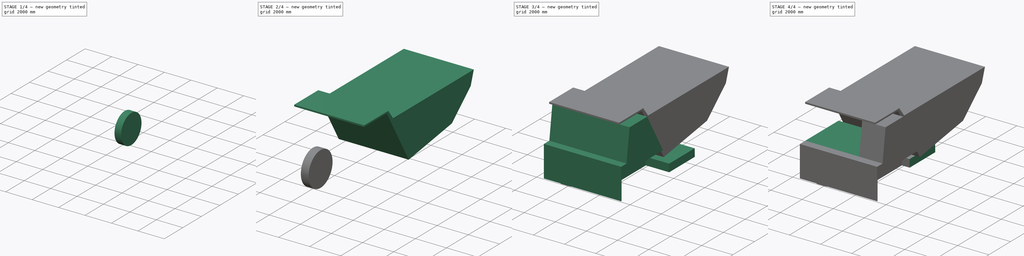
[diagram: build sequence overview — one tinted view per stage of 4, left to right]
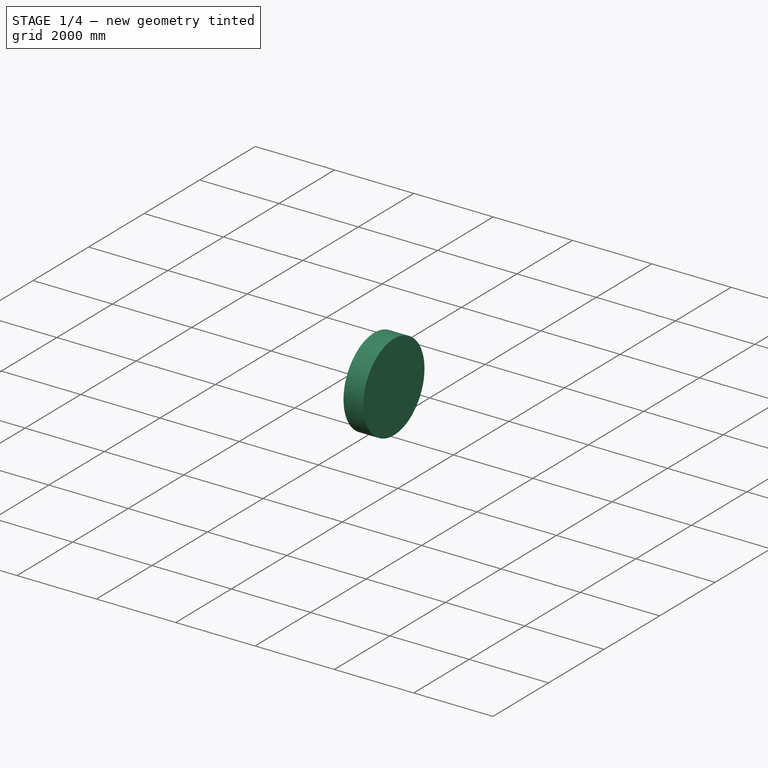
[diagram: stage 1 of 4 — iso view after this stage's code; geometry added in this stage tinted green]
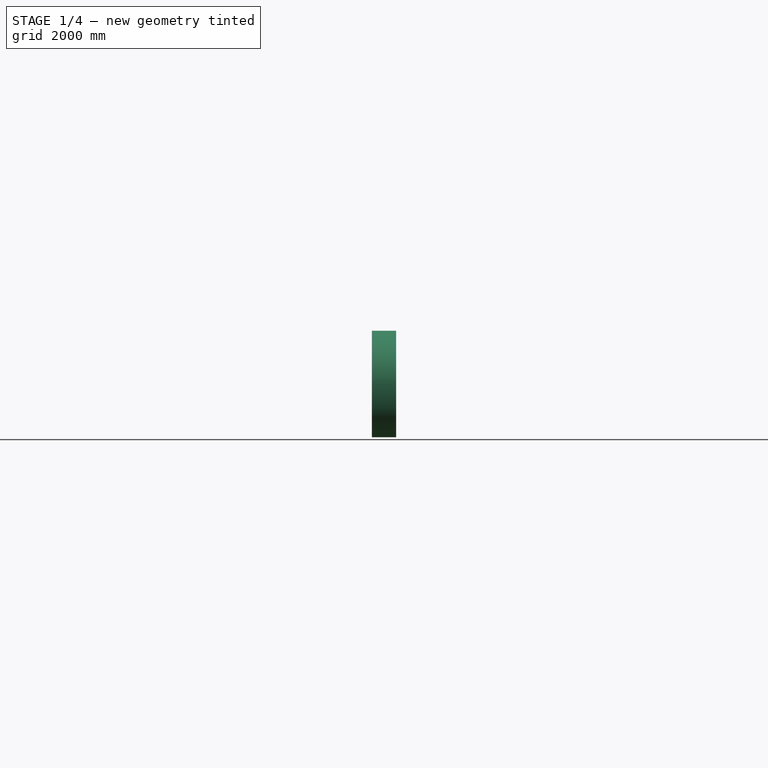
[diagram: stage 1 of 4 — front view after this stage's code; geometry added in this stage tinted green]
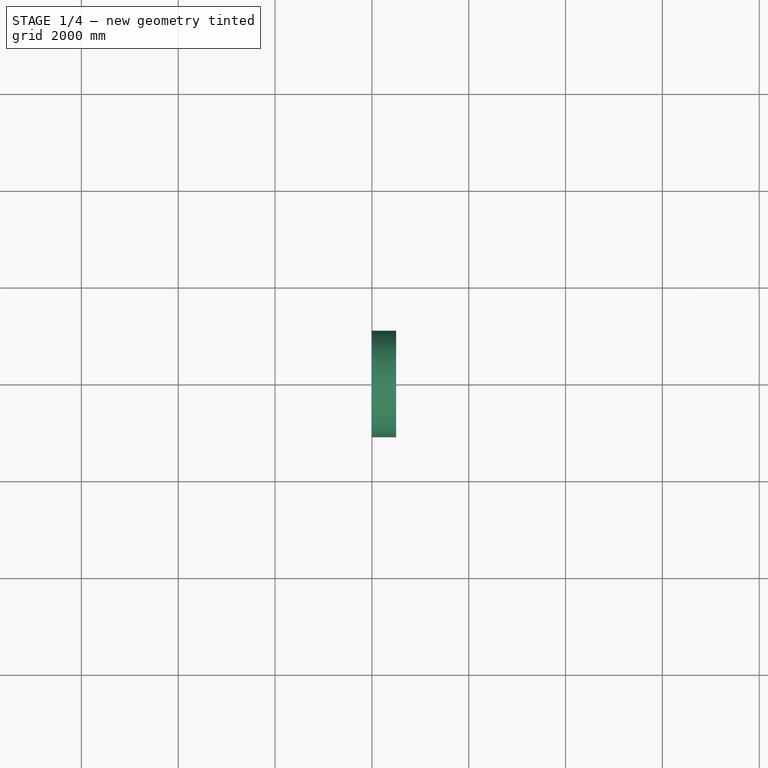
[diagram: stage 1 of 4 — top view after this stage's code; geometry added in this stage tinted green]
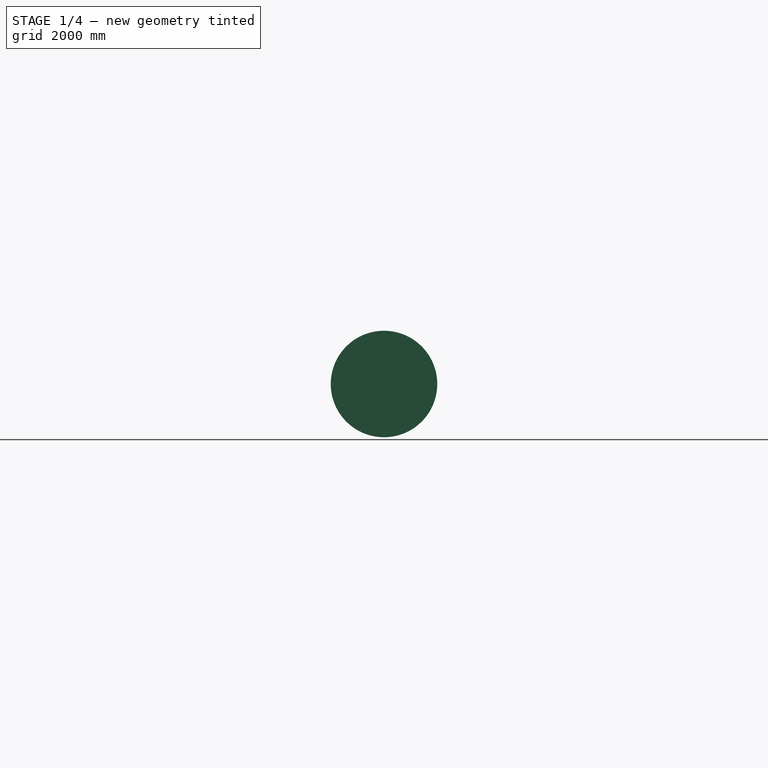
[diagram: stage 1 of 4 — right view after this stage's code; geometry added in this stage tinted green]
FCSTD DOCUMENT  (FreeCAD 0.20R)
Label: parts
License: All rights reserved
LicenseURL: http://en.wikipedia.org/wiki/All_rights_reserved
objects: App::FeaturePython×11, Sketcher::SketchObject×9, App::Link×6, PartDesign::Pocket×5, PartDesign::Pad×3, PartDesign::Body×3, App::Part×3, PartDesign::CoordinateSystem×1, PartDesign::Chamfer×1, PartDesign::Thickness×1, App::DocumentObjectGroupPython×1
note: 33 computed .brp shape members not serialized (recipe doc carries the construction recipe); baked Part::Feature solids carry a one-line shape summary decoded from their .brp

FEATURE [PartDesign::Body] Body
  Group = -> [Sketch,Pad,Sketch001,Pocket,Sketch002,Pocket001,Sketch003,Pocket002,Sketch006,Pocket003]
  Origin = -> Origin
  Placement = pos=(-2500,2200,0) rot=(0,0,1;0rad)
  Tip = -> Pocket003
FEATURE [Sketcher::SketchObject] Sketch007
  FullyConstrained = true
  MapMode = 5
  Placement = pos=(0,0,0) rot=(0.57735,0.57735,0.57735;2.0944rad)
  Support = -> [YZ_Plane004]
  sketch-geometry (1):
    g0: Circle CenterX=0 CenterY=0 CenterZ=0 NormalX=0 NormalY=0 NormalZ=1 AngleXU=0 Radius=1100.04
  constraints (2):
    c: Coincident(g0,g-1)
    c: Radius(g0) = 1100.04
FEATURE [PartDesign::Pad] Pad002
  Direction = (1,-2e-16,3e-16)
  Length = 500
  Length2 = 10
  Placement = pos=(0,0,0) rot=(0.57735,0.57735,0.57735;2.0944rad)
  Profile = -> Sketch007
  ReferenceAxis = -> Sketch007 [N_Axis]
  Type = 0
FEATURE [Sketcher::SketchObject] Sketch008
  ExternalGeometry = -> [Pad002]
  FullyConstrained = true
  MapMode = 5
  Placement = pos=(0,0,0) rot=(0.57735,0.57735,-0.57735;4.18879rad)
  Support = -> [Pad002]
  sketch-geometry (1):
    g0: Circle CenterX=0 CenterY=0 CenterZ=0 NormalX=0 NormalY=0 NormalZ=1 AngleXU=0 Radius=500
  constraints (2):
    c: Coincident(g0,g-3)
    c: Radius(g0) = 500
FEATURE [PartDesign::Pocket] Pocket004
  BaseFeature = -> Pad002
  Direction = (1,-4e-16,4e-16)
  Length = 200
  Length2 = 5
  Placement = pos=(0,0,0) rot=(0.57735,0.57735,0.57735;2.0944rad)
  Profile = -> Sketch008
  ReferenceAxis = -> Sketch008 [N_Axis]
  Type = 0
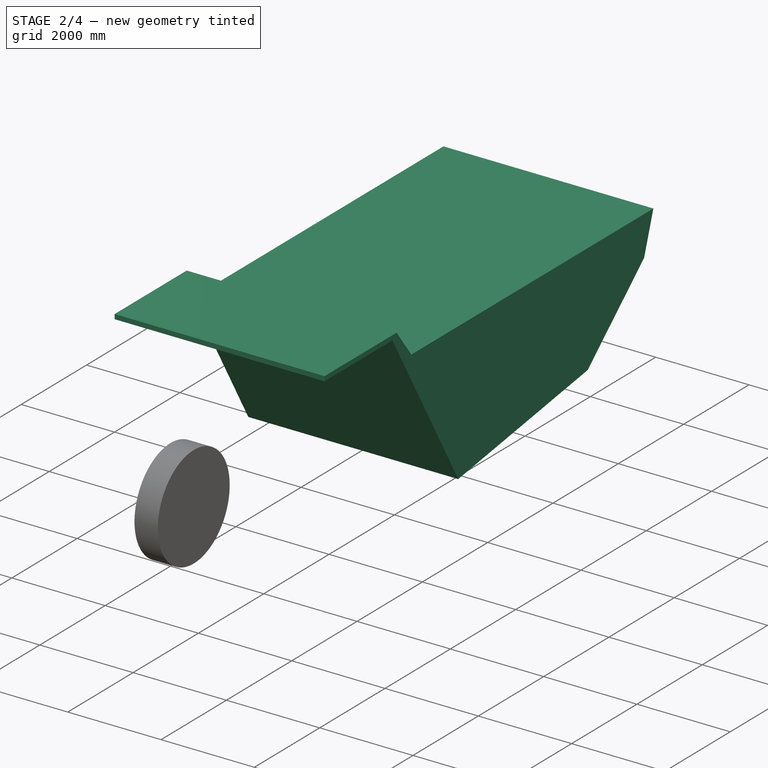
[diagram: stage 2 of 4 — iso view after this stage's code; geometry added in this stage tinted green]
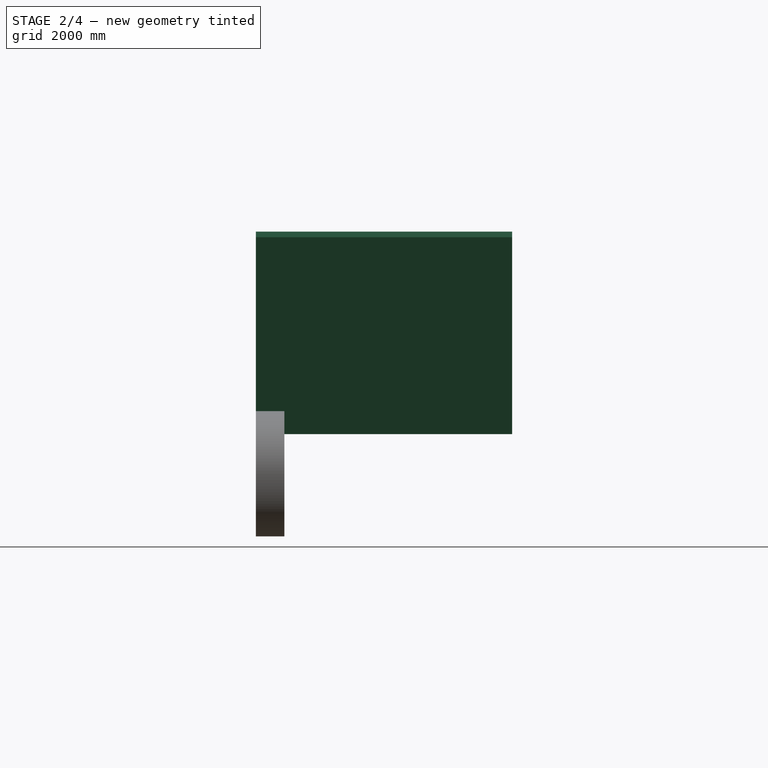
[diagram: stage 2 of 4 — front view after this stage's code; geometry added in this stage tinted green]
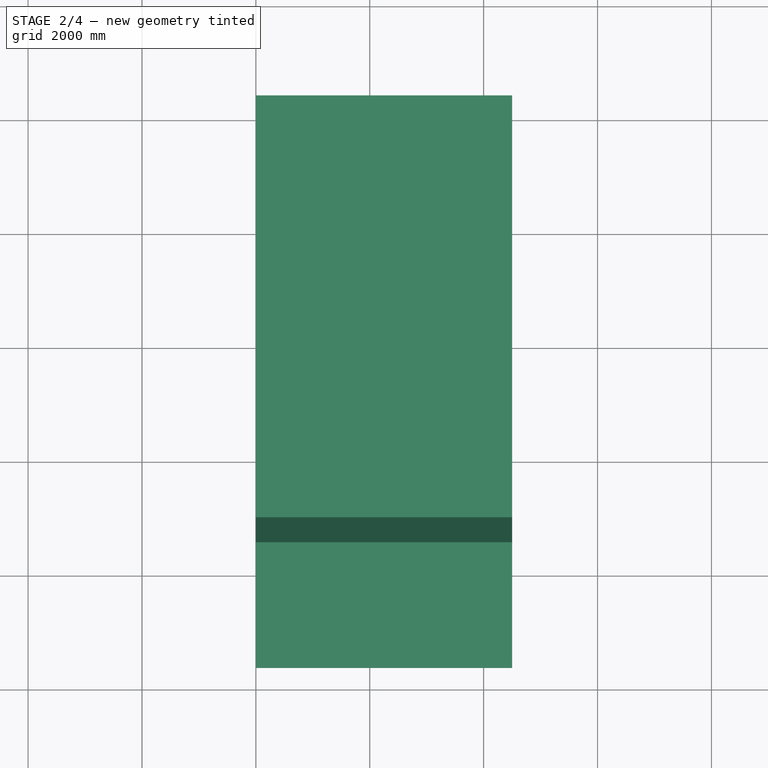
[diagram: stage 2 of 4 — top view after this stage's code; geometry added in this stage tinted green]
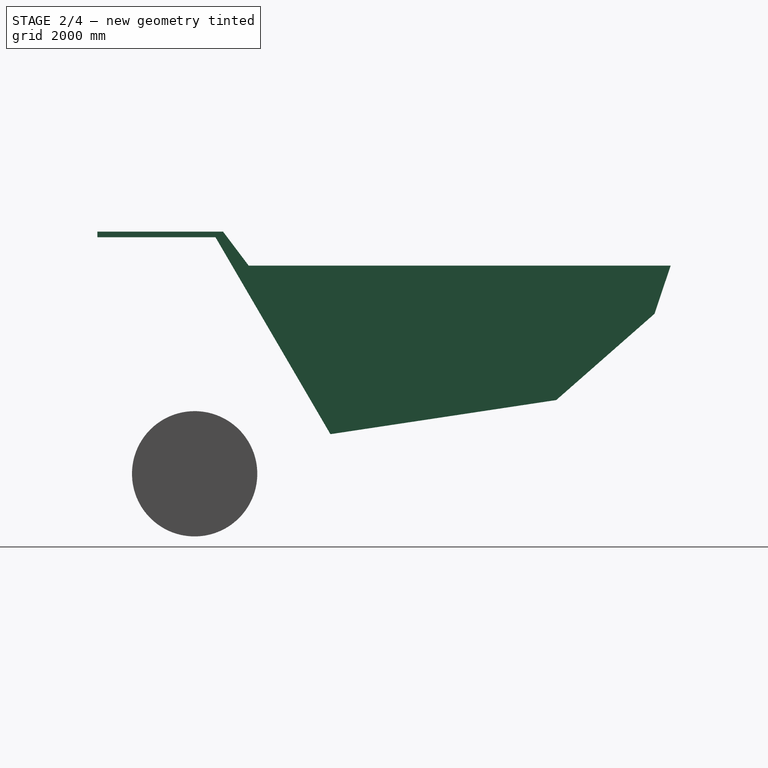
[diagram: stage 2 of 4 — right view after this stage's code; geometry added in this stage tinted green]
FEATURE [Sketcher::SketchObject] Sketch004
  FullyConstrained = false
  MapMode = 5
  Placement = pos=(0,0,0) rot=(0.57735,0.57735,0.57735;2.0944rad)
  Support = -> [YZ_Plane001]
  sketch-geometry (9):
    g0: LineSegment StartX=-1708.54 StartY=4253.06 StartZ=0 EndX=-1708.54 EndY=4153.06 EndZ=0
    g1: LineSegment StartX=-1708.54 StartY=4153.06 StartZ=0 EndX=366.583 EndY=4153.06 EndZ=0
    g2: LineSegment StartX=366.583 StartY=4153.06 StartZ=0 EndX=2384.55 EndY=695.566 EndZ=0
    g3: LineSegment StartX=2384.55 StartY=695.566 StartZ=0 EndX=6349.97 EndY=1294.79 EndZ=0
    g4: LineSegment StartX=6349.97 StartY=1294.79 StartZ=0 EndX=8076.46 EndY=2810.46 EndZ=0
    g5: LineSegment StartX=8076.46 StartY=2810.46 StartZ=0 EndX=8359.11 EndY=3656.41 EndZ=0
    g6: LineSegment StartX=8359.11 StartY=3656.41 StartZ=0 EndX=948.185 EndY=3656.41 EndZ=0
    g7: LineSegment StartX=948.185 StartY=3656.41 StartZ=0 EndX=498.263 EndY=4253.06 EndZ=0
    g8: LineSegment StartX=498.263 StartY=4253.06 StartZ=0 EndX=-1708.54 EndY=4253.06 EndZ=0
  constraints (15):
    c: Coincident(g0,g1)
    c: Coincident(g1,g2)
    c: Coincident(g2,g3)
    c: Coincident(g3,g4)
    c: Coincident(g4,g5)
    c: Coincident(g5,g6)
    c: Horizontal(g6)
    c: Coincident(g6,g7)
    c: Coincident(g7,g8)
    c: Coincident(g8,g0)
    c: Horizontal(g8)
    c: DistanceX(g0,g4) = 9785
    c: Angle(g1,g0) = 1.5708
    c: DistanceY(g0,g0) = 100
    c: DistanceY(g1,g7) = 100
FEATURE [PartDesign::Pad] Pad001
  Direction = (1,-2e-16,3e-16)
  Length = 4500
  Length2 = 10
  Placement = pos=(0,0,0) rot=(0.57735,0.57735,0.57735;2.0944rad)
  Profile = -> Sketch004
  ReferenceAxis = -> Sketch004 [N_Axis]
  Type = 0
FEATURE [PartDesign::Chamfer] Chamfer
  Angle = 45
  Base = -> Pocket004 [Edge4]
  BaseFeature = -> Pocket004
  ChamferType = 0
  FlipDirection = false
  Placement = pos=(0,0,0) rot=(0.57735,0.57735,0.57735;2.0944rad)
  Size = 150
  Size2 = 1
  SupportTransform = false
  UseAllEdges = false
FEATURE [PartDesign::Body] Body003  label="Wheel"
  Group = -> [Sketch007,Pad002,Sketch008,Pocket004,Chamfer]
  Origin = -> Origin004
  Placement = pos=(-500,0,0) rot=(0,0,1;0rad)
  Tip = -> Chamfer
FEATURE [PartDesign::Thickness] Thickness
  Base = -> Pad001 [Face7]
  BaseFeature = -> Pad001
  Intersection = false
  Join = 0
  Mode = 0
  SupportTransform = false
  Value = 20
FEATURE [PartDesign::Body] Body001  label="Tray23"
  AttachedBy = Origin
  AttachedTo = Parent Assembly#LCS_Origin
  AttachmentOffset = pos=(-2250,1700,400) rot=(0,0,1;0rad)
  Group = -> [Sketch004,Pad001,Thickness,Sketch005]
  Origin = -> Origin001
  Placement = pos=(-2250,1700,400) rot=(0,0,1;0rad)
  SolverId = Asm4EE
  Tip = -> Thickness
  expr: Placement = LCS_Origin.Placement * AttachmentOffset
FEATURE [App::Part] Part  label="Wheel part"
  Group = -> [Body003]
  Origin = -> Origin005
FEATURE [App::Part] Part001  label="Tray001"
  Group = -> [Body001]
  Origin = -> Origin006
FEATURE [App::Part] Part002  label="bodypart"
  Group = -> [Body]
  Origin = -> Origin007
FEATURE [App::Link] real_body_
  LinkedObject = -> Body
FEATURE [App::FeaturePython] Link  label="base_link"  # WARN: FeaturePython — macro-defined, semantics opaque (R4)
  Collision = -> [Body]
  Group = -> [real_body_]
  Ixx = 0
  Ixy = 0
  Ixz = 0
  Iyy = 0
  Iyz = 0
  Izz = 0
  Mass = 0
  Real = -> [Body]
  Visual = -> [Body]
  _Type = Cross::Link
FEATURE [App::Link] real_tray_
  LinkPlacement = pos=(0,0,500) rot=(0,0,1;0rad)
  LinkedObject = -> Body001
  Placement = pos=(0,0,500) rot=(0,0,1;0rad)
FEATURE [App::FeaturePython] Link001  label="tray"  # WARN: FeaturePython — macro-defined, semantics opaque (R4)
  Collision = -> [Body001]
  Group = -> [real_tray_]
  Ixx = 0
  Ixy = 0
  Ixz = 0
  Iyy = 0
  Iyz = 0
  Izz = 0
  Mass = 0
  Placement = pos=(0,0,500) rot=(0,0,1;0rad)
  Real = -> [Body001]
  Visual = -> [Body001]
  _Type = Cross::Link
FEATURE [App::FeaturePython] Joint  label="body_to_tray_joint"  # WARN: FeaturePython — macro-defined, semantics opaque (R4)
  Child = 1
  Effort = 0
  LowerLimit = 0
  Mimic = false
  Multiplier = 1
  Origin = pos=(0,0,500) rot=(0,0,1;0rad)
  Parent = 1
  Placement = pos=(0,0,500) rot=(0,0,1;0rad)
  Position = 0
  Type = 2
  UpperLimit = 0
  Velocity = 0
  _Type = Cross::Joint
FEATURE [App::FeaturePython] Joint001  label="left_wheel_joint"  # WARN: FeaturePython — macro-defined, semantics opaque (R4)
  Child = 1
  Effort = 0
  LowerLimit = 0
  Mimic = false
  Multiplier = 1
  Origin = pos=(4900,0,0) rot=(0,0,1;3.14159rad)
  Parent = 1
  Placement = pos=(4900,0,0) rot=(0,0,1;3.14159rad)
  Position = 0
  Type = 2
  UpperLimit = 0
  Velocity = 0
  _Type = Cross::Joint
FEATURE [App::FeaturePython] Joint002  label="right_wheel_joint"  # WARN: FeaturePython — macro-defined, semantics opaque (R4)
  Child = 1
  Effort = 0
  LowerLimit = 0
  Mimic = false
  Multiplier = 1
  Parent = 1
  Position = 0
  Type = 2
  UpperLimit = 0
  Velocity = 0
  _Type = Cross::Joint
FEATURE [App::FeaturePython] Joint003  label="back_left_wheel_joint"  # WARN: FeaturePython — macro-defined, semantics opaque (R4)
  Child = 1
  Effort = 0
  LowerLimit = 0
  Mimic = false
  Multiplier = 1
  Origin = pos=(4900,4000,0) rot=(0,0,1;3.14159rad)
  Parent = 1
  Placement = pos=(4900,4000,0) rot=(0,0,1;3.14159rad)
  Position = 0
  Type = 2
  UpperLimit = 0
  Velocity = 0
  _Type = Cross::Joint
FEATURE [App::FeaturePython] Joint004  label="back_right_wheel_joint"  # WARN: FeaturePython — macro-defined, semantics opaque (R4)
  Child = 1
  Effort = 0
  LowerLimit = 0
  Mimic = false
  Multiplier = 1
  Origin = pos=(0,4000,0) rot=(0,0,1;0rad)
  Parent = 1
  Placement = pos=(0,4000,0) rot=(0,0,1;0rad)
  Position = 0
  Type = 2
  UpperLimit = 0
  Velocity = 0
  _Type = Cross::Joint
FEATURE [App::Link] real_left_wheel_
  LinkPlacement = pos=(4900,0,0) rot=(0,0,1;3.14159rad)
  LinkedObject = -> Body003
  Placement = pos=(4900,0,0) rot=(0,0,1;3.14159rad)
FEATURE [App::FeaturePython] Link002  label="left_wheel"  # WARN: FeaturePython — macro-defined, semantics opaque (R4)
  Group = -> [real_left_wheel_]
  Ixx = 0
  Ixy = 0
  Ixz = 0
  Iyy = 0
  Iyz = 0
  Izz = 0
  Mass = 0
  Placement = pos=(4900,0,0) rot=(0,0,1;3.14159rad)
  Real = -> [Body003]
  Visual = -> [Body003]
  _Type = Cross::Link
FEATURE [App::Link] real_right_wheel_
  LinkedObject = -> Body003
FEATURE [App::FeaturePython] Link003  label="right_wheel"  # WARN: FeaturePython — macro-defined, semantics opaque (R4)
  Group = -> [real_right_wheel_]
  Ixx = 0
  Ixy = 0
  Ixz = 0
  Iyy = 0
  Iyz = 0
  Izz = 0
  Mass = 0
  Real = -> [Body003]
  Visual = -> [Body003]
  _Type = Cross::Link
FEATURE [App::Link] real_back_left_wheel_
  LinkPlacement = pos=(4900,4000,0) rot=(0,0,1;3.14159rad)
  LinkedObject = -> Body003
  Placement = pos=(4900,4000,0) rot=(0,0,1;3.14159rad)
FEATURE [App::FeaturePython] Link004  label="back_left_wheel"  # WARN: FeaturePython — macro-defined, semantics opaque (R4)
  Group = -> [real_back_left_wheel_]
  Ixx = 0
  Ixy = 0
  Ixz = 0
  Iyy = 0
  Iyz = 0
  Izz = 0
  Mass = 0
  Placement = pos=(4900,4000,0) rot=(0,0,1;3.14159rad)
  Real = -> [Body003]
  Visual = -> [Body003]
  _Type = Cross::Link
FEATURE [App::Link] real_back_right_wheel_
  LinkPlacement = pos=(0,4000,0) rot=(0,0,1;0rad)
  LinkedObject = -> Body003
  Placement = pos=(0,4000,0) rot=(0,0,1;0rad)
FEATURE [App::FeaturePython] Link005  label="back_right_wheel"  # WARN: FeaturePython — macro-defined, semantics opaque (R4)
  Group = -> [real_back_right_wheel_]
  Ixx = 0
  Ixy = 0
  Ixz = 0
  Iyy = 0
  Iyz = 0
  Izz = 0
  Mass = 0
  Placement = pos=(0,4000,0) rot=(0,0,1;0rad)
  Real = -> [Body003]
  Visual = -> [Body003]
  _Type = Cross::Link
FEATURE [App::DocumentObjectGroupPython] Robot  label="haul truck"  # scripted group (container) (typed FeaturePython)
  Group = -> [Link,Link001,Link002,Link003,Link004,Link005,Joint,Joint001,Joint002,Joint003,Joint004]
  _Type = Cross::Robot
  back_left_wheel_joint_deg = 0
  back_right_wheel_joint_deg = 0
  body_to_tray_joint_deg = 0
  left_wheel_joint_deg = 0
  right_wheel_joint_deg = 0
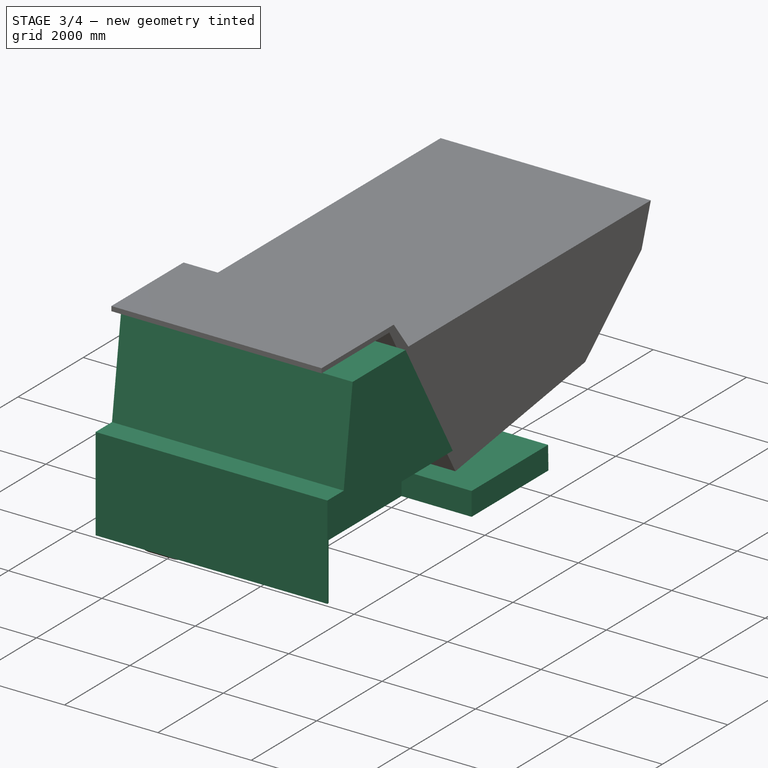
[diagram: stage 3 of 4 — iso view after this stage's code; geometry added in this stage tinted green]
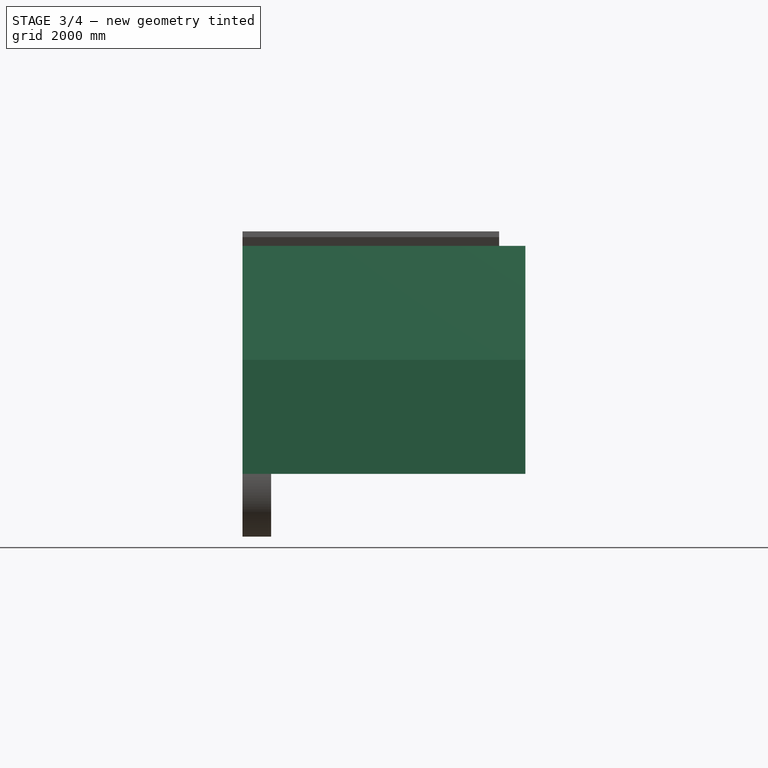
[diagram: stage 3 of 4 — front view after this stage's code; geometry added in this stage tinted green]
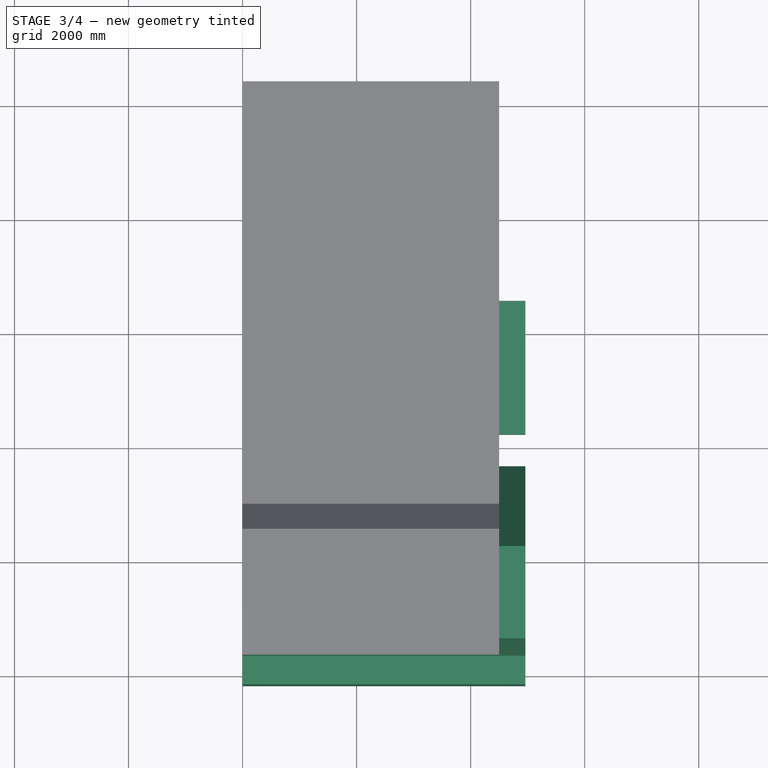
[diagram: stage 3 of 4 — top view after this stage's code; geometry added in this stage tinted green]
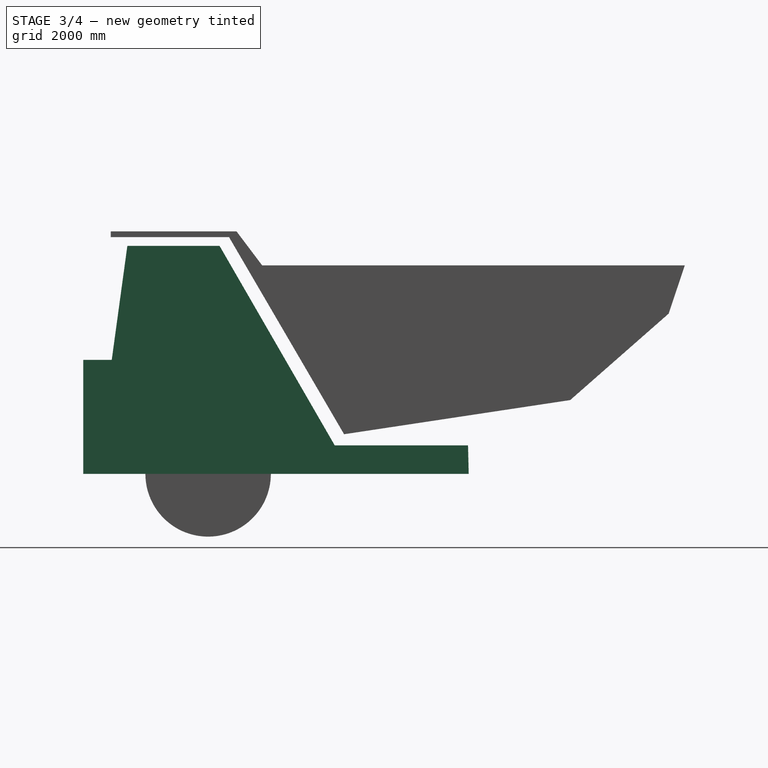
[diagram: stage 3 of 4 — right view after this stage's code; geometry added in this stage tinted green]
FEATURE [PartDesign::CoordinateSystem] LCS_Origin
  AttacherType = Attacher::AttachEngine3D
  MapMode = 2
  Support = -> [X_Axis003]
FEATURE [Sketcher::SketchObject] Sketch
  FullyConstrained = true
  MapMode = 5
  Placement = pos=(0,0,0) rot=(0.57735,0.57735,0.57735;2.0944rad)
  Support = -> [YZ_Plane]
  sketch-geometry (9):
    g0: LineSegment StartX=0 StartY=0 StartZ=0 EndX=4570 EndY=0 EndZ=0
    g1: LineSegment StartX=4570 StartY=0 StartZ=0 EndX=4558.22 EndY=500 EndZ=0
    g2: LineSegment StartX=4558.22 StartY=500 StartZ=0 EndX=2220.73 EndY=500 EndZ=0
    g3: LineSegment StartX=2220.73 StartY=500 StartZ=0 EndX=200 EndY=4000 EndZ=0
    g4: LineSegment StartX=200 StartY=4000 StartZ=0 EndX=-1416.39 EndY=4000 EndZ=0
    g5: LineSegment StartX=-1416.39 StartY=4000 StartZ=0 EndX=-1690 EndY=2000 EndZ=0
    g6: LineSegment StartX=-1690 StartY=2000 StartZ=0 EndX=-2190 EndY=2000 EndZ=0
    g7: LineSegment StartX=-2190 StartY=2000 StartZ=0 EndX=-2190 EndY=0 EndZ=0
    g8: LineSegment StartX=-2190 StartY=0 StartZ=0 EndX=0 EndY=0 EndZ=0
  constraints (26):
    c: Coincident(g0,g-1)
    c: PointOnObject(g0,g-1)
    c: Coincident(g1,g0)
    c: Coincident(g4,g3)
    c: Horizontal(g4)
    c: Coincident(g5,g4)
    c: Horizontal(g6)
    c: PointOnObject(g8,g-1)
    c: Coincident(g8,g0)
    c: Coincident(g6,g7)
    c: Coincident(g6,g5)
    c: Coincident(g3,g2)
    c: Coincident(g1,g2)
    c: DistanceX(g0,g0) = 4570
    c: DistanceX(g8,g0) = 2190
    c: DistanceY(g0,g1) = 500
    c: Parallel(g2,g0)
    c: Angle(g8,g7) = 1.5708
    c: DistanceY(g8,g6) = 2000
    c: DistanceY(g6,g4) = 2000
    c: DistanceX(g0,g3) = 200
    c: Angle(g5,g4) = 1.70676
    c: DistanceX(g6,g6) = 500
    c: Coincident(g7,g8)
    c: Angle(g4,g3) = 2.0944
    c: Angle(g2,g1) = 1.59436
FEATURE [PartDesign::Pad] Pad
  Direction = (1,-2e-16,3e-16)
  Length = 4961
  Length2 = 10
  Placement = pos=(0,0,0) rot=(0.57735,0.57735,0.57735;2.0944rad)
  Profile = -> Sketch
  ReferenceAxis = -> Sketch [N_Axis]
  Type = 0
FEATURE [Sketcher::SketchObject] Sketch001
  ExternalGeometry = -> [Pad]
  FullyConstrained = true
  MapMode = 5
  Placement = pos=(4961,-1.0914e-12,1.0914e-12) rot=(0.57735,0.57735,0.57735;2.0944rad)
  Support = -> [Pad]
  sketch-geometry (4):
    g0: LineSegment StartX=-2150 StartY=1500 StartZ=0 EndX=2220.73 EndY=1500 EndZ=0
    g1: LineSegment StartX=2220.73 StartY=1500 StartZ=0 EndX=2220.73 EndY=0 EndZ=0
    g2: LineSegment StartX=2220.73 StartY=0 StartZ=0 EndX=-2150 EndY=0 EndZ=0
    g3: LineSegment StartX=-2150 StartY=0 StartZ=0 EndX=-2150 EndY=1500 EndZ=0
  constraints (12):
    c: Coincident(g0,g1)
    c: Coincident(g1,g2)
    c: Coincident(g2,g3)
    c: Coincident(g3,g0)
    c: Horizontal(g0)
    c: Horizontal(g2)
    c: Vertical(g1)
    c: Vertical(g3)
    c: PointOnObject(g1,g-1)
    c: DistanceX(g-3,g2) = 40
    c: DistanceX(g-4,g1) = 0
    c: DistanceY(g2,g0) = 1500
FEATURE [PartDesign::Pocket] Pocket
  BaseFeature = -> Pad
  Direction = (-1,4e-16,-4e-16)
  Length = 1500
  Length2 = 5
  Placement = pos=(0,0,0) rot=(0.57735,0.57735,0.57735;2.0944rad)
  Profile = -> Sketch001
  ReferenceAxis = -> Sketch001 [N_Axis]
  Type = 0
FEATURE [Sketcher::SketchObject] Sketch002
  ExternalGeometry = -> [Pocket]
  FullyConstrained = true
  MapMode = 5
  Placement = pos=(-1.3e-15,0,0) rot=(0.57735,0.57735,-0.57735;4.18879rad)
  Support = -> [Pocket]
  sketch-geometry (4):
    g0: LineSegment StartX=-2150 StartY=-1.5916e-12 StartZ=0 EndX=2220.73 EndY=-1.5916e-12 EndZ=0
    g1: LineSegment StartX=2220.73 StartY=-1.5916e-12 StartZ=0 EndX=2220.73 EndY=-1500 EndZ=0
    g2: LineSegment StartX=2220.73 StartY=-1500 StartZ=0 EndX=-2150 EndY=-1500 EndZ=0
    g3: LineSegment StartX=-2150 StartY=-1500 StartZ=0 EndX=-2150 EndY=-1.5916e-12 EndZ=0
  constraints (12):
    c: Coincident(g0,g1)
    c: Coincident(g1,g2)
    c: Coincident(g2,g3)
    c: Coincident(g3,g0)
    c: Horizontal(g0)
    c: Horizontal(g2)
    c: Vertical(g1)
    c: Vertical(g3)
    c: DistanceX(g-3,g0) = 40
    c: DistanceY(g1,g0) = 1500
    c: DistanceY(g0,g-3) = 0
    c: DistanceX(g0,g-4) = 0
FEATURE [PartDesign::Pocket] Pocket001
  BaseFeature = -> Pocket
  Direction = (1,-6e-16,5e-16)
  Length = 1500
  Length2 = 5
  Placement = pos=(0,0,0) rot=(0.57735,0.57735,0.57735;2.0944rad)
  Profile = -> Sketch002
  ReferenceAxis = -> Sketch002 [N_Axis]
  Type = 0
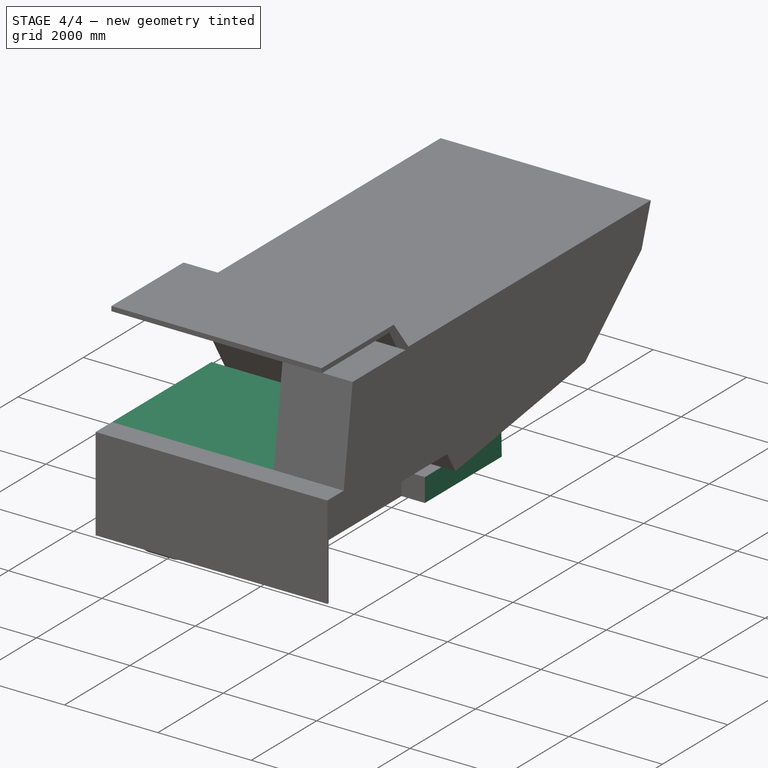
[diagram: stage 4 of 4 — iso view after this stage's code; geometry added in this stage tinted green]
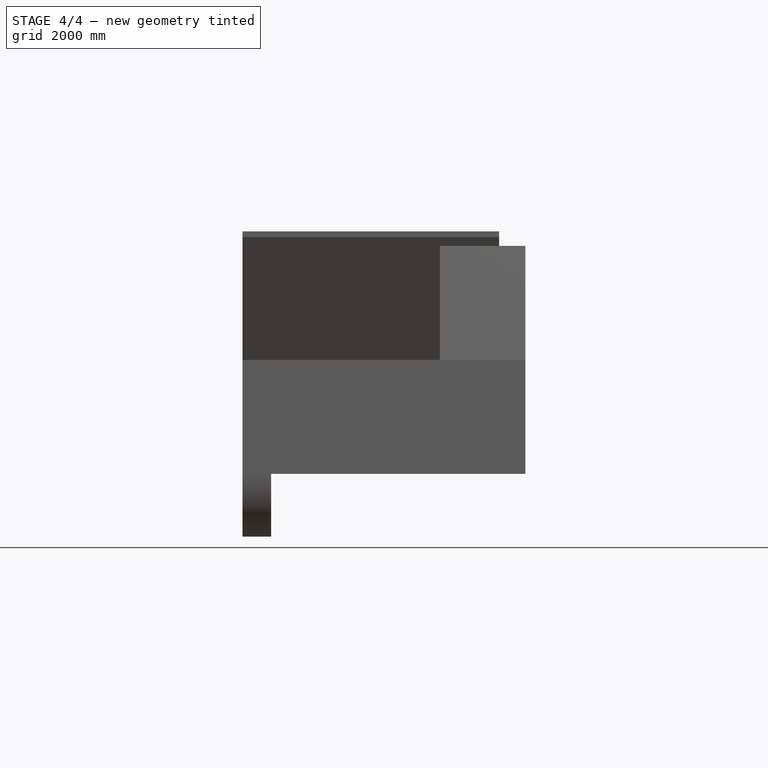
[diagram: stage 4 of 4 — front view after this stage's code; geometry added in this stage tinted green]
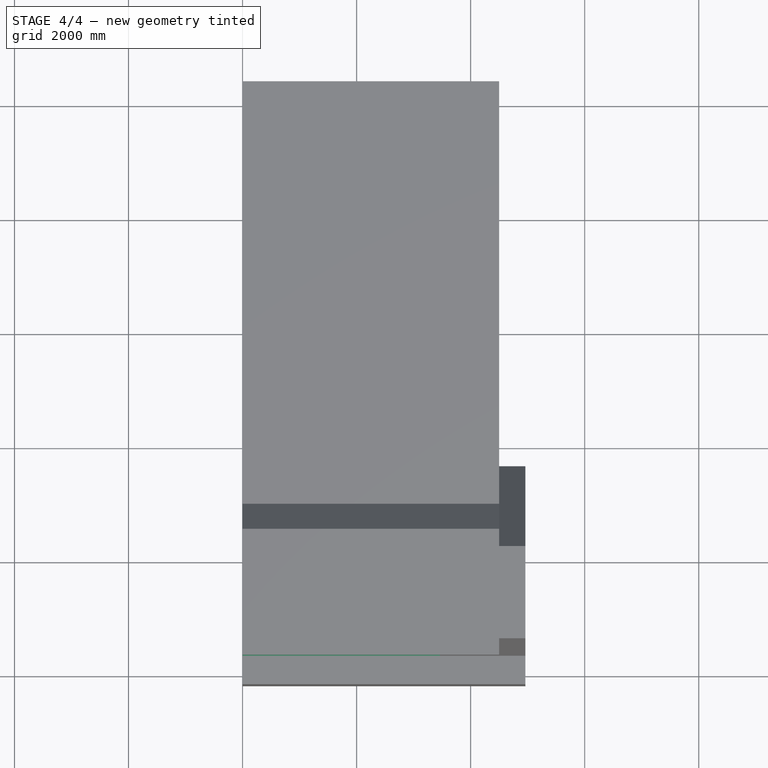
[diagram: stage 4 of 4 — top view after this stage's code; geometry added in this stage tinted green]
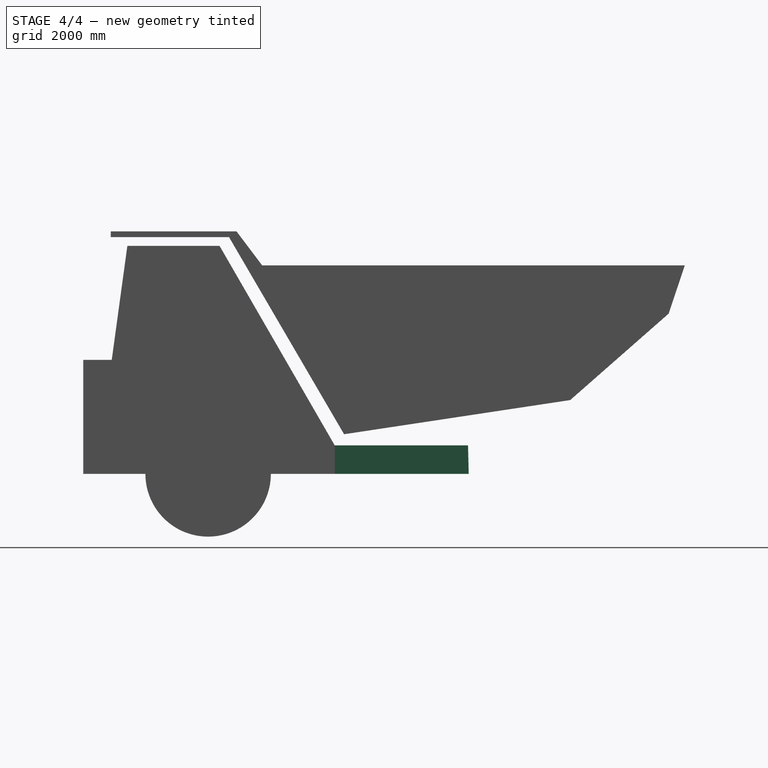
[diagram: stage 4 of 4 — right view after this stage's code; geometry added in this stage tinted green]
FEATURE [Sketcher::SketchObject] Sketch003
  ExternalGeometry = -> [Pocket001]
  FullyConstrained = true
  MapMode = 5
  Placement = pos=(0,0,0) rot=(0.707107,0.707107,0;3.14159rad)
  Support = -> [Pocket001]
  sketch-geometry (8):
    g0: LineSegment StartX=4570 StartY=4961 StartZ=0 EndX=4570 EndY=3961 EndZ=0
    g1: LineSegment StartX=4570 StartY=3961 StartZ=0 EndX=2220.73 EndY=3961 EndZ=0
    g2: LineSegment StartX=2220.73 StartY=4961 StartZ=0 EndX=2220.73 EndY=3961 EndZ=0
    g3: LineSegment StartX=4570 StartY=0 StartZ=0 EndX=2220.73 EndY=0 EndZ=0
    g4: LineSegment StartX=2220.73 StartY=0 StartZ=0 EndX=2220.73 EndY=1000 EndZ=0
    g5: LineSegment StartX=2220.73 StartY=1000 StartZ=0 EndX=4570 EndY=1000 EndZ=0
    g6: LineSegment StartX=4570 StartY=1000 StartZ=0 EndX=4570 EndY=0 EndZ=0
    g7: LineSegment StartX=2220.73 StartY=4961 StartZ=0 EndX=4570 EndY=4961 EndZ=0
  constraints (21):
    c: Vertical(g0)
    c: Coincident(g1,g0)
    c: Horizontal(g1)
    c: Coincident(g2,g-3)
    c: Coincident(g2,g1)
    c: Vertical(g2)
    c: Coincident(g0,g-3)
    c: DistanceY(g0,g0) = 1000
    c: Coincident(g3,g4)
    c: Coincident(g4,g5)
    c: Coincident(g5,g6)
    c: Coincident(g6,g3)
    c: Horizontal(g3)
    c: Horizontal(g5)
    c: Vertical(g4)
    c: Vertical(g6)
    c: Coincident(g3,g-5)
    c: PointOnObject(g4,g-6)
    c: DistanceY(g3,g5) = 1000
    c: Coincident(g7,g2)
    c: Coincident(g7,g0)
FEATURE [PartDesign::Pocket] Pocket002
  BaseFeature = -> Pocket001
  Direction = (-1.1e-15,8e-16,1)
  Length = 2000
  Length2 = 5
  Placement = pos=(0,0,0) rot=(0.57735,0.57735,0.57735;2.0944rad)
  Profile = -> Sketch003
  ReferenceAxis = -> Sketch003 [N_Axis]
  Type = 0
FEATURE [Sketcher::SketchObject] Sketch005
  FullyConstrained = true
  MapMode = 5
  Support = -> [XY_Plane001]
FEATURE [Sketcher::SketchObject] Sketch006
  ExternalGeometry = -> [Pocket002]
  FullyConstrained = true
  MapMode = 5
  Placement = pos=(-9.338e-13,-1927.54,263.697) rot=(0.549352,0.549352,-0.629623;2.01776rad)
  Support = -> [Pocket002]
  sketch-geometry (4):
    g0: LineSegment StartX=-3771.1 StartY=1.3642e-12 StartZ=0 EndX=-1752.48 EndY=1.3642e-12 EndZ=0
    g1: LineSegment StartX=-1752.48 StartY=1.3642e-12 StartZ=0 EndX=-1752.48 EndY=3461 EndZ=0
    g2: LineSegment StartX=-1752.48 StartY=3461 StartZ=0 EndX=-3771.1 EndY=3461 EndZ=0
    g3: LineSegment StartX=-3771.1 StartY=3461 StartZ=0 EndX=-3771.1 EndY=1.3642e-12 EndZ=0
  constraints (11):
    c: Coincident(g0,g1)
    c: Coincident(g1,g2)
    c: Coincident(g2,g3)
    c: Coincident(g3,g0)
    c: Horizontal(g0)
    c: Horizontal(g2)
    c: Vertical(g1)
    c: Vertical(g3)
    c: Coincident(g-3,g0)
    c: DistanceY(g2,g-4) = 1500
    c: DistanceX(g0,g-5) = 0
FEATURE [PartDesign::Pocket] Pocket003
  AlongSketchNormal = false
  BaseFeature = -> Pocket002
  Direction = (0,0.1,0)
  Length = 2000
  Length2 = 5
  Placement = pos=(0,0,0) rot=(0.57735,0.57735,0.57735;2.0944rad)
  Profile = -> Sketch006
  ReferenceAxis = -> Sketch006 [N_Axis]
  Type = 1
  UseCustomVector = true
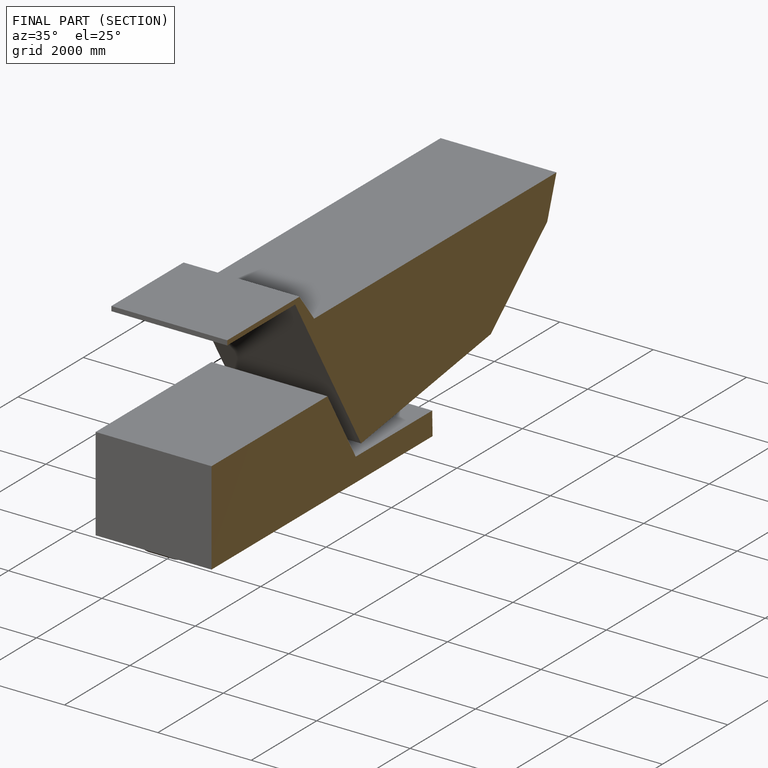
[diagram: finished part — half-section view (interior)]
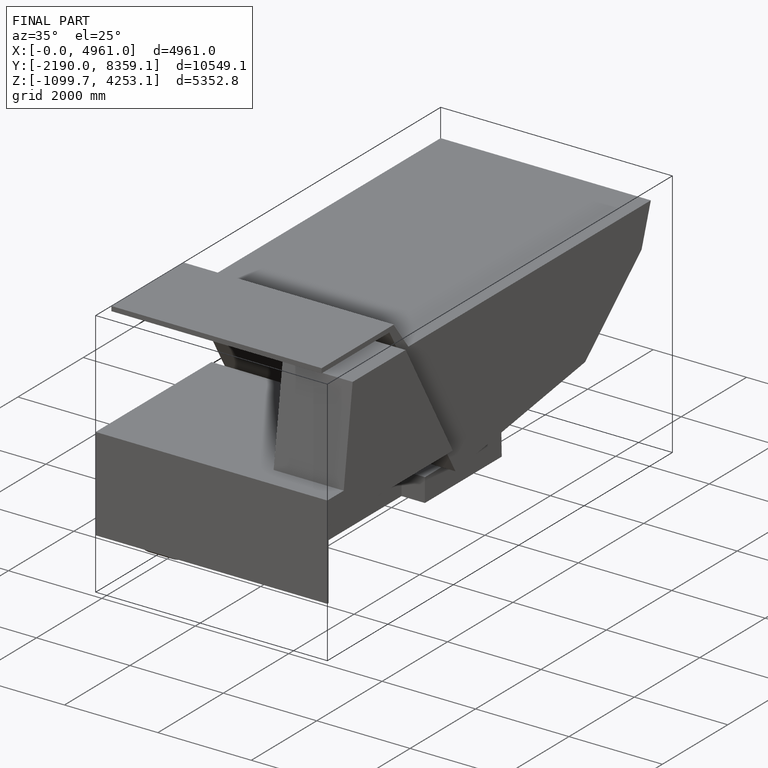
[diagram: finished part — iso view with bounding-box wireframe]
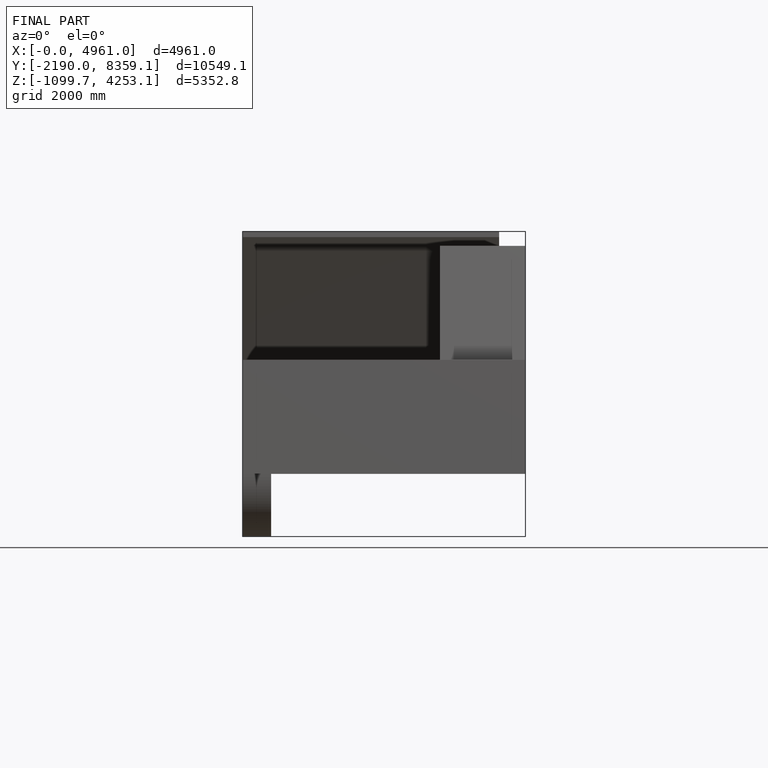
[diagram: finished part — front view with bounding-box wireframe]
